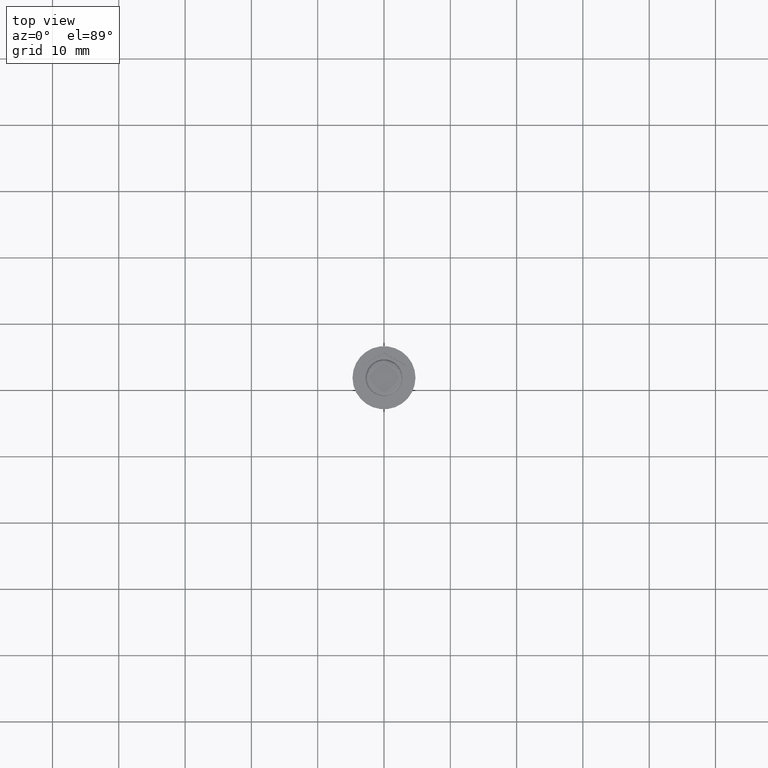
[diagram: clean part render]
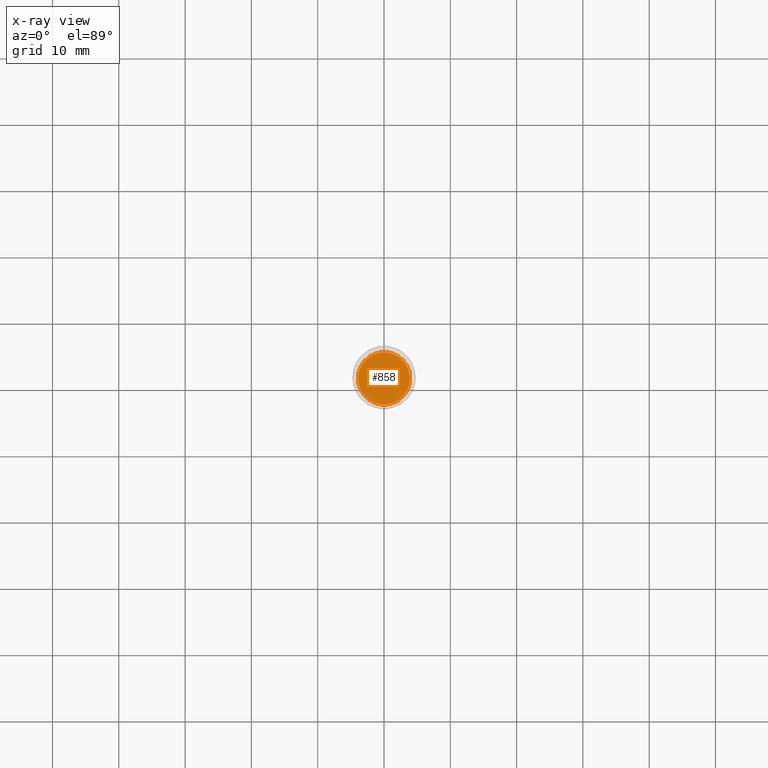
[diagram: x-ray — body ghosted, one internal face saturated and labeled with its STEP entity id]
A machine part, top view, then the same camera in x-ray: the body is ghosted and one INTERNAL B-rep face — a face not visible from any outside direction — is saturated and labeled: STEP entity #858.
In plain terms, the highlighted planar face has unit normal (0, 0, -1).
Its self-contained STEP definition (entity closure, byte-faithful):
#9 = AXIS2_PLACEMENT_3D ( 'NONE', #496, #67, #1016 ) ;
#38 = DIRECTION ( 'NONE',  ( -1.000000000000000000, 0.000000000000000000, 0.000000000000000000 ) ) ;
#61 = ORIENTED_EDGE ( 'NONE', *, *, #2173, .T. ) ;
#67 = DIRECTION ( 'NONE',  ( -0.000000000000000000, -0.000000000000000000, 1.000000000000000000 ) ) ;
#83 = ORIENTED_EDGE ( 'NONE', *, *, #232, .T. ) ;
#232 = EDGE_CURVE ( 'NONE', #317, #2209, #747, .T. ) ;
#317 = VERTEX_POINT ( 'NONE', #2334 ) ;
#448 = CARTESIAN_POINT ( 'NONE',  ( 3.950000000000001066, 5.021051876504150343E-16, -7.500000000000000000 ) ) ;
#496 = CARTESIAN_POINT ( 'NONE',  ( 0.000000000000000000, 0.000000000000000000, -7.500000000000000000 ) ) ;
#566 = CIRCLE ( 'NONE', #1175, 3.950000000000001066 ) ;
#602 = CARTESIAN_POINT ( 'NONE',  ( 0.000000000000000000, 0.000000000000000000, -7.500000000000000000 ) ) ;
#747 = CIRCLE ( 'NONE', #9, 3.950000000000001066 ) ;
#858 = ADVANCED_FACE ( 'NONE', ( #1970 ), #1102, .F. ) ;
#971 = DIRECTION ( 'NONE',  ( -0.000000000000000000, -0.000000000000000000, 1.000000000000000000 ) ) ;
#1016 = DIRECTION ( 'NONE',  ( -1.000000000000000000, 0.000000000000000000, 0.000000000000000000 ) ) ;
#1102 = PLANE ( 'NONE',  #2365 ) ;
#1175 = AXIS2_PLACEMENT_3D ( 'NONE', #602, #971, #38 ) ;
#1374 = EDGE_LOOP ( 'NONE', ( #83, #61 ) ) ;
#1649 = DIRECTION ( 'NONE',  ( 0.000000000000000000, 0.000000000000000000, -1.000000000000000000 ) ) ;
#1827 = DIRECTION ( 'NONE',  ( -1.000000000000000000, 0.000000000000000000, -0.000000000000000000 ) ) ;
#1970 = FACE_OUTER_BOUND ( 'NONE', #1374, .T. ) ;
#2010 = CARTESIAN_POINT ( 'NONE',  ( 0.000000000000000000, 0.000000000000000000, -7.500000000000000000 ) ) ;
#2173 = EDGE_CURVE ( 'NONE', #2209, #317, #566, .T. ) ;
#2209 = VERTEX_POINT ( 'NONE', #448 ) ;
#2334 = CARTESIAN_POINT ( 'NONE',  ( -3.950000000000001066, 0.000000000000000000, -7.500000000000000000 ) ) ;
#2365 = AXIS2_PLACEMENT_3D ( 'NONE', #2010, #1649, #1827 ) ;